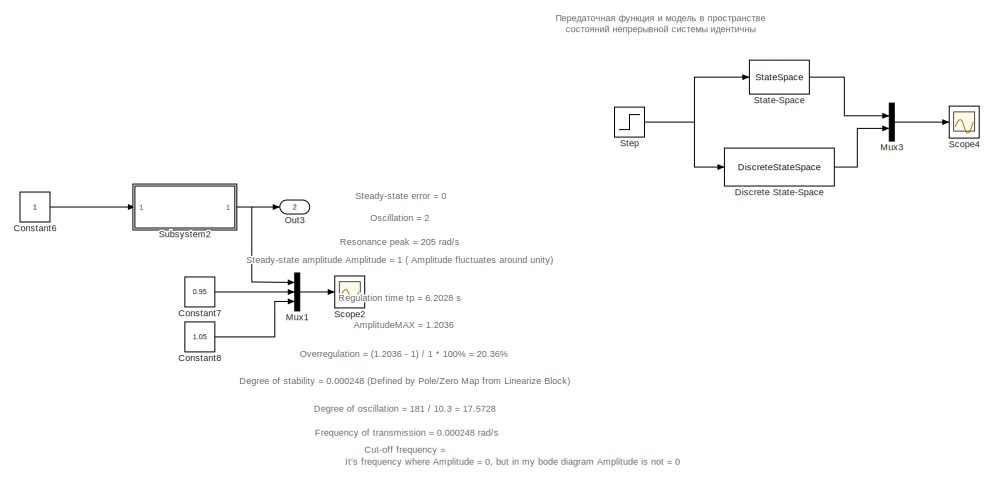
[diagram: root canvas - part 1/2, right side, full height]
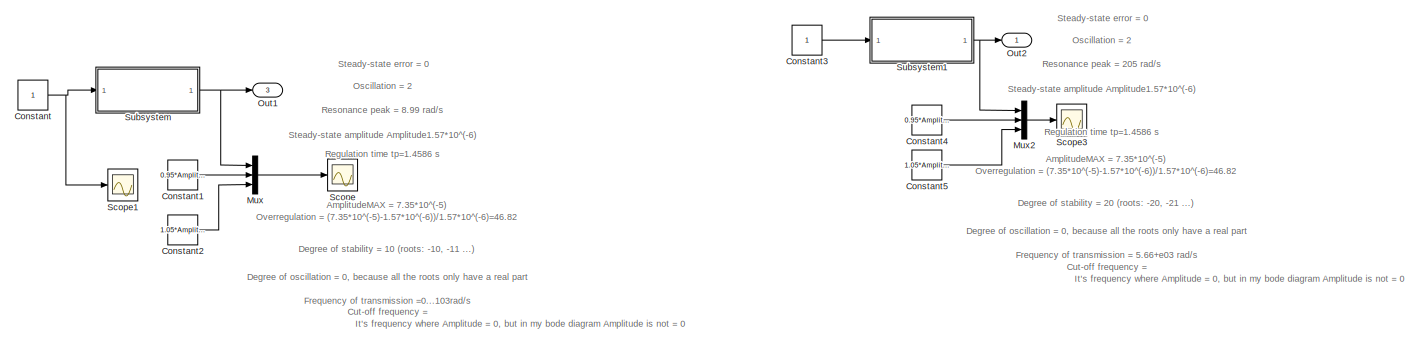
[diagram: root canvas - part 2/2, middle left region]
MODEL slx_09b5d3a6c4a5
KIND model
CONFIG AbsTol = auto
CONFIG EnableMultiTasking = off
CONFIG FixedStep = auto
CONFIG MaxStep = auto
CONFIG MinStep = auto
CONFIG RelTol = 1e-3
CONFIG SampleTimeConstraint = Unconstrained
CONFIG Solver = VariableStepAuto
CONFIG SolverName = VariableStepAuto
CONFIG StartTime = 0.0
CONFIG StopTime = 10.0
BLOCK [Constant] Constant
  Commented = on
BLOCK [Constant] Constant1
  Commented = on
  Value = 0.95*Amplitude
BLOCK [Constant] Constant2
  Commented = on
  Value = 1.05*Amplitude
BLOCK [Constant] Constant3
  Commented = on
BLOCK [Constant] Constant4
  Commented = on
  Value = 0.95*Amplitude
BLOCK [Constant] Constant5
  Commented = on
  Value = 1.05*Amplitude
BLOCK [Constant] Constant6
  Commented = on
BLOCK [Constant] Constant7
  Commented = on
  Value = 0.95
BLOCK [Constant] Constant8
  Commented = on
  Value = 1.05
BLOCK [DiscreteStateSpace] Discrete State-Space
  A = eye(5)+A*0.001
  B = B*0.001
  C = C
  D = 0
  SampleTime = 0.001
BLOCK [Mux] Mux
  Commented = on
  DisplayOption = bar
  Inputs = 3
  Ports = [3, 1]
BLOCK [Mux] Mux1
  Commented = on
  DisplayOption = bar
  Inputs = 3
  Ports = [3, 1]
BLOCK [Mux] Mux2
  Commented = on
  DisplayOption = bar
  Inputs = 3
  Ports = [3, 1]
BLOCK [Mux] Mux3
  DisplayOption = bar
  Inputs = 2
  Ports = [2, 1]
BLOCK [Outport] Out1
  IconDisplay = Port number
  Port = 3
BLOCK [Outport] Out2
  IconDisplay = Port number
BLOCK [Outport] Out3
  IconDisplay = Port number
  Port = 2
BLOCK [Scope] Scope
  Commented = on
  DataFormat = StructureWithTime
  Floating = off
  LimitDataPoints = off
  NumInputPorts = 1
  Ports = [1]
  SampleTime = 0
  ShowLegends = off
  TimeRange = 6.71088640000761e-05
  YMax = 1.491531209518069e-06
  YMin = 1.490725903150069e-06
BLOCK [Scope] Scope1
  Commented = on
  DataFormat = StructureWithTime
  Floating = off
  NumInputPorts = 1
  Ports = [1]
  SampleTime = 0
  SaveName = ScopeData1
  ShowLegends = off
  TimeRange = 6.71088640000761e-05
  YMax = 1.491531209518069e-06
  YMin = 1.490725903150069e-06
BLOCK [Scope] Scope2
  Commented = on
  DataFormat = StructureWithTime
  Floating = off
  LimitDataPoints = off
  NumInputPorts = 1
  Ports = [1]
  SampleTime = 0
  SaveName = ScopeData2
  ShowLegends = off
  TimeRange = 2.801837117871742e-07
  YMax = 1.574612058926273e-06
  YMin = 1.574574372556849e-06
BLOCK [Scope] Scope3
  Commented = on
  DataFormat = StructureWithTime
  Floating = off
  LimitDataPoints = off
  NumInputPorts = 1
  Ports = [1]
  SampleTime = 0
  SaveName = ScopeData3
  ShowLegends = off
  TimeRange = 6.71088640000761e-05
  YMax = 1.491531209518069e-06
  YMin = 1.490725903150069e-06
BLOCK [Scope] Scope4
  DataFormat = StructureWithTime
  Floating = off
  NumInputPorts = 1
  Ports = [1]
  SampleTime = 0
  SaveName = ScopeData4
  ShowLegends = off
BLOCK [StateSpace] State-Space
  A = A
  B = B
  C = C
  D = 0
  Ports = [1, 1]
  X0 = 0
BLOCK [Step] Step
  SampleTime = 0
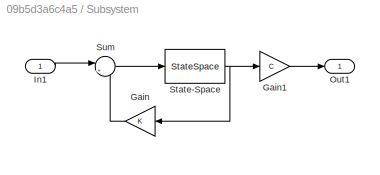
BLOCK [SubSystem] Subsystem
  Commented = on
  Ports = [1, 1]
  RequestExecContextInheritance = off
BLOCK [Gain] Subsystem/Gain
  Gain = K
  Multiplication = Matrix(K*u)
  OutDataTypeStr = Inherit: Inherit via internal rule
  ParamDataTypeStr = Inherit: Inherit via internal rule
  SaturateOnIntegerOverflow = off
BLOCK [Gain] Subsystem/Gain1
  Gain = C
  Multiplication = Matrix(K*u)
  OutDataTypeStr = Inherit: Inherit via internal rule
  ParamDataTypeStr = Inherit: Inherit via internal rule
  SaturateOnIntegerOverflow = off
BLOCK [Inport] Subsystem/In1
  IconDisplay = Port number
BLOCK [Outport] Subsystem/Out1
  IconDisplay = Port number
BLOCK [StateSpace] Subsystem/State-Space
  A = A
  B = B
  C = E
  D = zeros(rA,1)
  Ports = [1, 1]
  X0 = 0
BLOCK [Sum] Subsystem/Sum
  IconShape = round
  InputSameDT = off
  Inputs = |+-
  OutDataTypeStr = Inherit: Inherit via internal rule
  Ports = [2, 1]
  SaturateOnIntegerOverflow = off
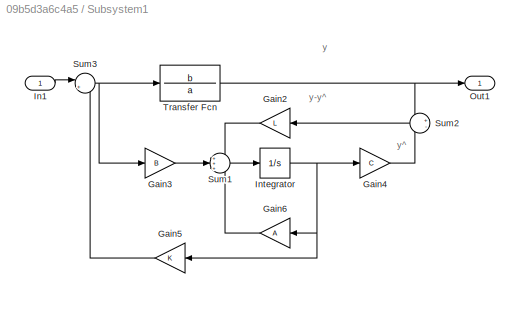
BLOCK [SubSystem] Subsystem1
  Commented = on
  Ports = [1, 1]
  RequestExecContextInheritance = off
BLOCK [Gain] Subsystem1/Gain2
  Gain = L
  Multiplication = Matrix(K*u)
  OutDataTypeStr = Inherit: Inherit via internal rule
  ParamDataTypeStr = Inherit: Inherit via internal rule
  SaturateOnIntegerOverflow = off
BLOCK [Gain] Subsystem1/Gain3
  Gain = B
  Multiplication = Matrix(K*u)
  OutDataTypeStr = Inherit: Inherit via internal rule
  ParamDataTypeStr = Inherit: Inherit via internal rule
  SaturateOnIntegerOverflow = off
BLOCK [Gain] Subsystem1/Gain4
  Gain = C
  Multiplication = Matrix(K*u)
  OutDataTypeStr = Inherit: Inherit via internal rule
  ParamDataTypeStr = Inherit: Inherit via internal rule
  SaturateOnIntegerOverflow = off
BLOCK [Gain] Subsystem1/Gain5
  Gain = K
  Multiplication = Matrix(K*u)
  OutDataTypeStr = Inherit: Inherit via internal rule
  ParamDataTypeStr = Inherit: Inherit via internal rule
  SaturateOnIntegerOverflow = off
BLOCK [Gain] Subsystem1/Gain6
  Gain = A
  Multiplication = Matrix(K*u)
  OutDataTypeStr = Inherit: Inherit via internal rule
  ParamDataTypeStr = Inherit: Inherit via internal rule
  SaturateOnIntegerOverflow = off
BLOCK [Inport] Subsystem1/In1
  IconDisplay = Port number
BLOCK [Integrator] Subsystem1/Integrator
  Ports = [1, 1]
BLOCK [Outport] Subsystem1/Out1
  IconDisplay = Port number
BLOCK [Sum] Subsystem1/Sum1
  IconShape = round
  InputSameDT = off
  Inputs = +++
  OutDataTypeStr = Inherit: Inherit via internal rule
  Ports = [3, 1]
  SaturateOnIntegerOverflow = off
BLOCK [Sum] Subsystem1/Sum2
  IconShape = round
  InputSameDT = off
  Inputs = +-
  OutDataTypeStr = Inherit: Inherit via internal rule
  Ports = [2, 1]
  SaturateOnIntegerOverflow = off
BLOCK [Sum] Subsystem1/Sum3
  IconShape = round
  InputSameDT = off
  Inputs = |+-
  OutDataTypeStr = Inherit: Inherit via internal rule
  Ports = [2, 1]
  SaturateOnIntegerOverflow = off
BLOCK [TransferFcn] Subsystem1/Transfer Fcn
  Denominator = a
  Numerator = b
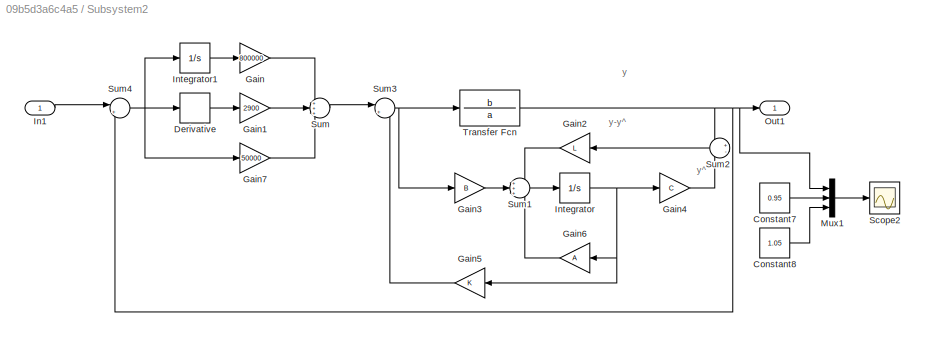
BLOCK [SubSystem] Subsystem2
  Commented = on
  Ports = [1, 1]
  RequestExecContextInheritance = off
BLOCK [Constant] Subsystem2/Constant7
  Value = 0.95
BLOCK [Constant] Subsystem2/Constant8
  Value = 1.05
BLOCK [Derivative] Subsystem2/Derivative
BLOCK [Gain] Subsystem2/Gain
  Gain = 800000
  OutDataTypeStr = Inherit: Inherit via internal rule
  ParamDataTypeStr = Inherit: Inherit via internal rule
  SaturateOnIntegerOverflow = off
BLOCK [Gain] Subsystem2/Gain1
  Gain = 2900
  OutDataTypeStr = Inherit: Inherit via internal rule
  ParamDataTypeStr = Inherit: Inherit via internal rule
  SaturateOnIntegerOverflow = off
BLOCK [Gain] Subsystem2/Gain2
  Gain = L
  Multiplication = Matrix(K*u)
  OutDataTypeStr = Inherit: Inherit via internal rule
  ParamDataTypeStr = Inherit: Inherit via internal rule
  SaturateOnIntegerOverflow = off
BLOCK [Gain] Subsystem2/Gain3
  Gain = B
  Multiplication = Matrix(K*u)
  OutDataTypeStr = Inherit: Inherit via internal rule
  ParamDataTypeStr = Inherit: Inherit via internal rule
  SaturateOnIntegerOverflow = off
BLOCK [Gain] Subsystem2/Gain4
  Gain = C
  Multiplication = Matrix(K*u)
  OutDataTypeStr = Inherit: Inherit via internal rule
  ParamDataTypeStr = Inherit: Inherit via internal rule
  SaturateOnIntegerOverflow = off
BLOCK [Gain] Subsystem2/Gain5
  Gain = K
  Multiplication = Matrix(K*u)
  OutDataTypeStr = Inherit: Inherit via internal rule
  ParamDataTypeStr = Inherit: Inherit via internal rule
  SaturateOnIntegerOverflow = off
BLOCK [Gain] Subsystem2/Gain6
  Gain = A
  Multiplication = Matrix(K*u)
  OutDataTypeStr = Inherit: Inherit via internal rule
  ParamDataTypeStr = Inherit: Inherit via internal rule
  SaturateOnIntegerOverflow = off
BLOCK [Gain] Subsystem2/Gain7
  Gain = 50000
  OutDataTypeStr = Inherit: Inherit via internal rule
  ParamDataTypeStr = Inherit: Inherit via internal rule
  SaturateOnIntegerOverflow = off
BLOCK [Inport] Subsystem2/In1
  IconDisplay = Port number
BLOCK [Integrator] Subsystem2/Integrator
  Ports = [1, 1]
BLOCK [Integrator] Subsystem2/Integrator1
  Ports = [1, 1]
BLOCK [Mux] Subsystem2/Mux1
  DisplayOption = bar
  Inputs = 3
  Ports = [3, 1]
BLOCK [Outport] Subsystem2/Out1
  IconDisplay = Port number
BLOCK [Scope] Subsystem2/Scope2
  DataFormat = StructureWithTime
  Floating = off
  LimitDataPoints = off
  NumInputPorts = 1
  Ports = [1]
  SampleTime = 0
  SaveName = ScopeData5
  ShowLegends = off
  TimeRange = 2.801837117871742e-07
  YMax = 1.574612058926273e-06
  YMin = 1.574574372556849e-06
  ZoomMode = yonly
BLOCK [Sum] Subsystem2/Sum
  IconShape = round
  InputSameDT = off
  Inputs = +++
  OutDataTypeStr = Inherit: Inherit via internal rule
  Ports = [3, 1]
  SaturateOnIntegerOverflow = off
BLOCK [Sum] Subsystem2/Sum1
  IconShape = round
  InputSameDT = off
  Inputs = +++
  OutDataTypeStr = Inherit: Inherit via internal rule
  Ports = [3, 1]
  SaturateOnIntegerOverflow = off
BLOCK [Sum] Subsystem2/Sum2
  IconShape = round
  InputSameDT = off
  Inputs = +-
  OutDataTypeStr = Inherit: Inherit via internal rule
  Ports = [2, 1]
  SaturateOnIntegerOverflow = off
BLOCK [Sum] Subsystem2/Sum3
  IconShape = round
  InputSameDT = off
  Inputs = |+-
  OutDataTypeStr = Inherit: Inherit via internal rule
  Ports = [2, 1]
  SaturateOnIntegerOverflow = off
BLOCK [Sum] Subsystem2/Sum4
  IconShape = round
  InputSameDT = off
  Inputs = |+-
  OutDataTypeStr = Inherit: Inherit via internal rule
  Ports = [2, 1]
  SaturateOnIntegerOverflow = off
BLOCK [TransferFcn] Subsystem2/Transfer Fcn
  Denominator = a
  Numerator = b
ANNOTATION (root): AmplitudeMAX = 1.2036
ANNOTATION (root): AmplitudeMAX = 7.35*10^(-5)
ANNOTATION (root): Cut-off frequency =
ANNOTATION (root): Degree of oscillation = 0, because all the roots only have a real part
ANNOTATION (root): Degree of oscillation = 181 / 10.3 = 17.5728
ANNOTATION (root): Degree of stability = 0.000248 (Defined by Pole/Zero Map from Linearize Block)
ANNOTATION (root): Degree of stability = 10 (roots: -10, -11 ...)
ANNOTATION (root): Degree of stability = 20 (roots: -20, -21 ...)
ANNOTATION (root): Frequency of transmission = 0.000248 rad/s
ANNOTATION (root): Frequency of transmission = 5.66+e03 rad/s
ANNOTATION (root): Frequency of transmission =0...103rad/s
ANNOTATION (root): It's frequency where Amplitude = 0, but in my bode diagram Amplitude is not = 0
ANNOTATION (root): Oscillation = 2
ANNOTATION (root): Overregulation = (1.2036 - 1) / 1 * 100% = 20.36%
ANNOTATION (root): Overregulation = (7.35*10^(-5)-1.57*10^(-6))/1.57*10^(-6)=46.82
ANNOTATION (root): Regulation time tp = 6.2028 s
ANNOTATION (root): Regulation time tp=1.4586 s
ANNOTATION (root): Resonance peak = 205 rad/s
ANNOTATION (root): Resonance peak = 8.99 rad/s
ANNOTATION (root): Steady-state amplitude Amplitude = 1 ( Amplitude fluctuates around unity)
ANNOTATION (root): Steady-state amplitude Amplitude1.57*10^(-6)
ANNOTATION (root): Steady-state error = 0
ANNOTATION (root): Передаточная функция и модель в пространстве состояний непрерывной системы идентичны
ANNOTATION Subsystem1: y
ANNOTATION Subsystem1: y-y^
ANNOTATION Subsystem1: y^
ANNOTATION Subsystem2: y
ANNOTATION Subsystem2: y-y^
ANNOTATION Subsystem2: y^
LINE Constant1:1 -> Mux:2
LINE Constant2:1 -> Mux:3
LINE Constant3:1 -> Subsystem1:1
LINE Constant4:1 -> Mux2:2
LINE Constant5:1 -> Mux2:3
LINE Constant6:1 -> Subsystem2:1
LINE Constant7:1 -> Mux1:2
LINE Constant8:1 -> Mux1:3
NET Constant:1 -> Scope1:1, Subsystem:1
LINE Discrete State-Space:1 -> Mux3:2
LINE Mux1:1 -> Scope2:1
LINE Mux2:1 -> Scope3:1
LINE Mux3:1 -> Scope4:1
LINE Mux:1 -> Scope:1
LINE State-Space:1 -> Mux3:1
NET Step:1 -> Discrete State-Space:1, State-Space:1
LINE Subsystem/Gain1:1 -> Subsystem/Out1:1
LINE Subsystem/Gain:1 -> Subsystem/Sum:2
LINE Subsystem/In1:1 -> Subsystem/Sum:1
NET Subsystem/State-Space:1 -> Subsystem/Gain1:1, Subsystem/Gain:1
LINE Subsystem/Sum:1 -> Subsystem/State-Space:1
LINE Subsystem1/Gain2:1 -> Subsystem1/Sum1:1
LINE Subsystem1/Gain3:1 -> Subsystem1/Sum1:2
LINE Subsystem1/Gain4:1 -> Subsystem1/Sum2:2
LINE Subsystem1/Gain5:1 -> Subsystem1/Sum3:2
LINE Subsystem1/Gain6:1 -> Subsystem1/Sum1:3
LINE Subsystem1/In1:1 -> Subsystem1/Sum3:1
NET Subsystem1/Integrator:1 -> Subsystem1/Gain4:1, Subsystem1/Gain5:1, Subsystem1/Gain6:1
LINE Subsystem1/Sum1:1 -> Subsystem1/Integrator:1
LINE Subsystem1/Sum2:1 -> Subsystem1/Gain2:1
NET Subsystem1/Sum3:1 -> Subsystem1/Gain3:1, Subsystem1/Transfer Fcn:1
NET Subsystem1/Transfer Fcn:1 -> Subsystem1/Out1:1, Subsystem1/Sum2:1
NET Subsystem1:1 -> Mux2:1, Out2:1
LINE Subsystem2/Constant7:1 -> Subsystem2/Mux1:2
LINE Subsystem2/Constant8:1 -> Subsystem2/Mux1:3
LINE Subsystem2/Derivative:1 -> Subsystem2/Gain1:1
LINE Subsystem2/Gain1:1 -> Subsystem2/Sum:2
LINE Subsystem2/Gain2:1 -> Subsystem2/Sum1:1
LINE Subsystem2/Gain3:1 -> Subsystem2/Sum1:2
LINE Subsystem2/Gain4:1 -> Subsystem2/Sum2:2
LINE Subsystem2/Gain5:1 -> Subsystem2/Sum3:2
LINE Subsystem2/Gain6:1 -> Subsystem2/Sum1:3
LINE Subsystem2/Gain7:1 -> Subsystem2/Sum:3
LINE Subsystem2/Gain:1 -> Subsystem2/Sum:1
LINE Subsystem2/In1:1 -> Subsystem2/Sum4:1
LINE Subsystem2/Integrator1:1 -> Subsystem2/Gain:1
NET Subsystem2/Integrator:1 -> Subsystem2/Gain4:1, Subsystem2/Gain5:1, Subsystem2/Gain6:1
LINE Subsystem2/Mux1:1 -> Subsystem2/Scope2:1
LINE Subsystem2/Sum1:1 -> Subsystem2/Integrator:1
LINE Subsystem2/Sum2:1 -> Subsystem2/Gain2:1
NET Subsystem2/Sum3:1 -> Subsystem2/Gain3:1, Subsystem2/Transfer Fcn:1
NET Subsystem2/Sum4:1 -> Subsystem2/Derivative:1, Subsystem2/Gain7:1, Subsystem2/Integrator1:1
LINE Subsystem2/Sum:1 -> Subsystem2/Sum3:1
NET Subsystem2/Transfer Fcn:1 -> Subsystem2/Mux1:1, Subsystem2/Out1:1, Subsystem2/Sum2:1, Subsystem2/Sum4:2
NET Subsystem2:1 -> Mux1:1, Out3:1
NET Subsystem:1 -> Mux:1, Out1:1
note: NET lines group one-source signal fan-out (src -> all destinations, sorted); 1:1 wires keep LINE
